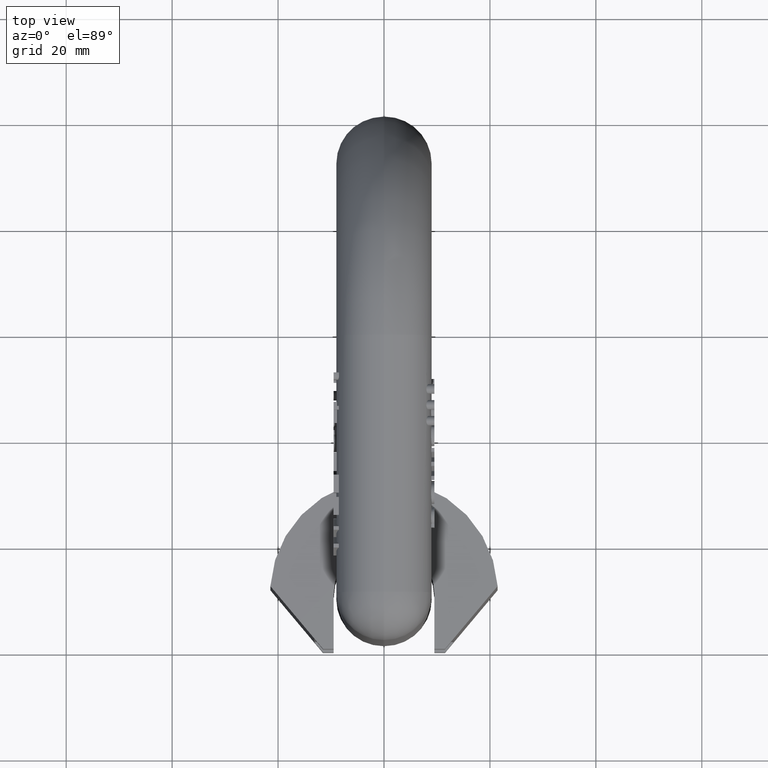
[diagram: clean part render]
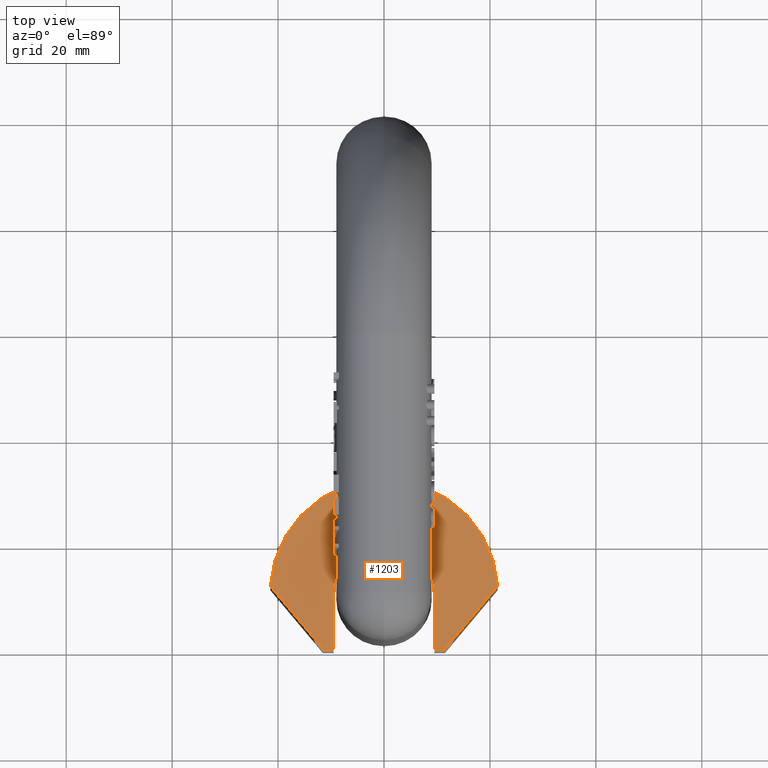
[diagram: same view with one face highlighted and labeled with its STEP entity id]
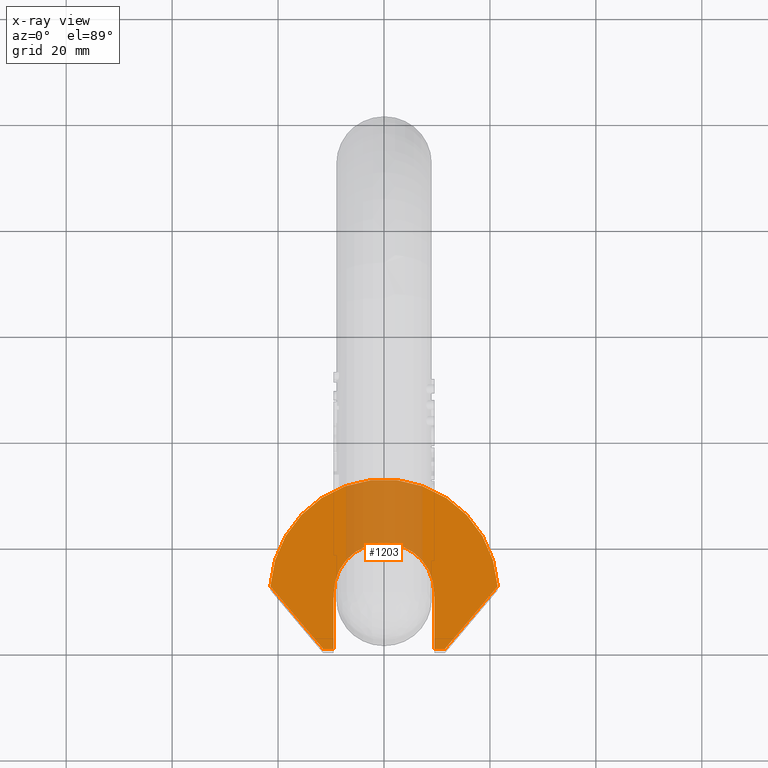
[diagram: x-ray of the same camera — body ghosted, the highlighted face saturated]
A machine part, top view. The second image highlights one B-rep face of the part: STEP entity #1203.
The next image is the same camera in x-ray: the body ghosted, the highlighted face saturated — about 25% of this face is hidden behind the body in this view.
In plain terms, the highlighted planar face has unit normal (0, 0, -1).
Its self-contained STEP definition (entity closure, byte-faithful):
#944=PLANE('',#8717);
#1203=ADVANCED_FACE('',(#1719),#944,.F.);
#1719=FACE_OUTER_BOUND('',#2155,.T.);
#2155=EDGE_LOOP('',(#2770,#2771,#2772,#2773,#2774,#2775,#2776,#2777));
#2638=CIRCLE('',#8713,21.5);
#2640=CIRCLE('',#8716,9.5);
#2770=ORIENTED_EDGE('',*,*,#6174,.F.);
#2771=ORIENTED_EDGE('',*,*,#6175,.T.);
#2772=ORIENTED_EDGE('',*,*,#6176,.T.);
#2773=ORIENTED_EDGE('',*,*,#6177,.T.);
#2774=ORIENTED_EDGE('',*,*,#6178,.T.);
#2775=ORIENTED_EDGE('',*,*,#6179,.T.);
#2776=ORIENTED_EDGE('',*,*,#6180,.F.);
#2777=ORIENTED_EDGE('',*,*,#6171,.T.);
#5322=VERTEX_POINT('',#10973);
#5324=VERTEX_POINT('',#10976);
#5326=VERTEX_POINT('',#10982);
#5327=VERTEX_POINT('',#10984);
#5328=VERTEX_POINT('',#10986);
#5329=VERTEX_POINT('',#10988);
#5330=VERTEX_POINT('',#10990);
#5331=VERTEX_POINT('',#10992);
#6171=EDGE_CURVE('',#5324,#5322,#2638,.T.);
#6174=EDGE_CURVE('',#5326,#5322,#7450,.T.);
#6175=EDGE_CURVE('',#5326,#5327,#7451,.T.);
#6176=EDGE_CURVE('',#5327,#5328,#7452,.T.);
#6177=EDGE_CURVE('',#5328,#5329,#2640,.T.);
#6178=EDGE_CURVE('',#5329,#5330,#7453,.T.);
#6179=EDGE_CURVE('',#5330,#5331,#7454,.T.);
#6180=EDGE_CURVE('',#5324,#5331,#7455,.T.);
#7450=LINE('',#10981,#8018);
#7451=LINE('',#10983,#8019);
#7452=LINE('',#10985,#8020);
#7453=LINE('',#10989,#8021);
#7454=LINE('',#10991,#8022);
#7455=LINE('',#10993,#8023);
#8018=VECTOR('',#9243,1.);
#8019=VECTOR('',#9244,1.);
#8020=VECTOR('',#9245,1.);
#8021=VECTOR('',#9248,1.);
#8022=VECTOR('',#9249,1.);
#8023=VECTOR('',#9250,1.);
#8713=AXIS2_PLACEMENT_3D('',#10975,#9236,#9237);
#8716=AXIS2_PLACEMENT_3D('',#10987,#9246,#9247);
#8717=AXIS2_PLACEMENT_3D('',#10994,#9251,#9252);
#9236=DIRECTION('',(0.,0.,1.));
#9237=DIRECTION('',(1.,0.,0.));
#9243=DIRECTION('',(-0.642787609686539,0.766044443118978,0.));
#9244=DIRECTION('',(1.,0.,0.));
#9245=DIRECTION('',(1.65211759616839E-16,1.,0.));
#9246=DIRECTION('',(0.,0.,-1.));
#9247=DIRECTION('',(1.,1.82602471155453E-16,0.));
#9248=DIRECTION('',(1.65211759616839E-16,-1.,0.));
#9249=DIRECTION('',(1.,6.57384087684176E-32,0.));
#9250=DIRECTION('',(-0.642787609686539,-0.766044443118978,0.));
#9251=DIRECTION('',(0.,0.,-1.));
#9252=DIRECTION('',(-1.,0.,0.));
#10973=CARTESIAN_POINT('',(-21.4565755038759,11.8657846266796,22.5));
#10975=CARTESIAN_POINT('',(0.,10.5,22.5));
#10976=CARTESIAN_POINT('',(21.4565755038759,11.8657846266796,22.5));
#10981=CARTESIAN_POINT('',(-11.9187177248989,0.499008352931186,22.5));
#10982=CARTESIAN_POINT('',(-11.5,0.,22.5));
#10983=CARTESIAN_POINT('',(-21.5,0.,22.5));
#10984=CARTESIAN_POINT('',(-9.5,0.,22.5));
#10985=CARTESIAN_POINT('',(-9.5,0.,22.5));
#10986=CARTESIAN_POINT('',(-9.5,10.5,22.5));
#10987=CARTESIAN_POINT('',(0.,10.5,22.5));
#10988=CARTESIAN_POINT('',(9.5,10.5,22.5));
#10989=CARTESIAN_POINT('',(9.5,10.5,22.5));
#10990=CARTESIAN_POINT('',(9.5,0.,22.5));
#10991=CARTESIAN_POINT('',(9.5,-7.88860905221012E-31,22.5));
#10992=CARTESIAN_POINT('',(11.5,0.,22.5));
#10993=CARTESIAN_POINT('',(11.9187177248989,0.499008352931183,22.5));
#10994=CARTESIAN_POINT('',(0.,10.5,22.5));